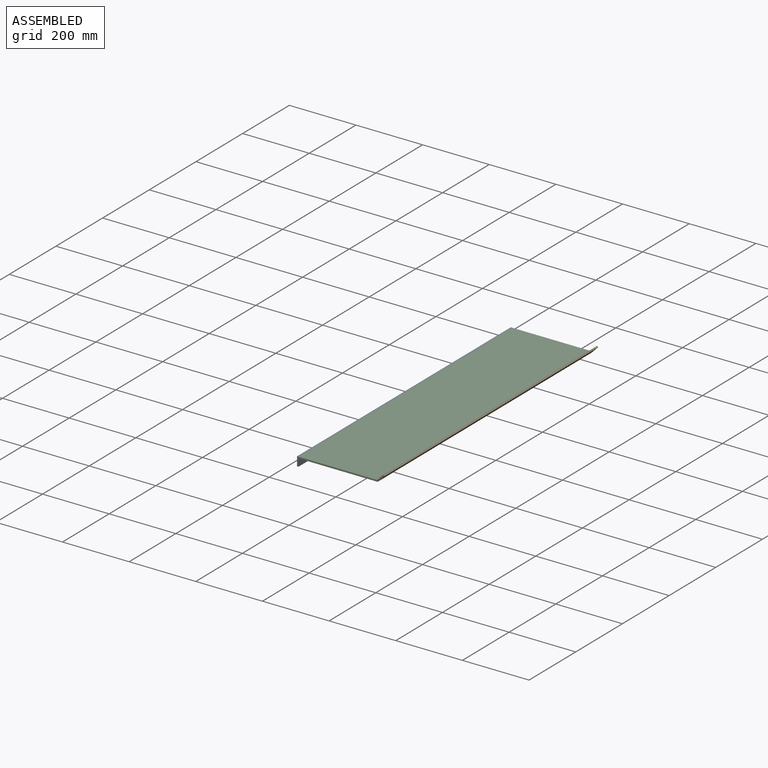
[diagram: assembled view]
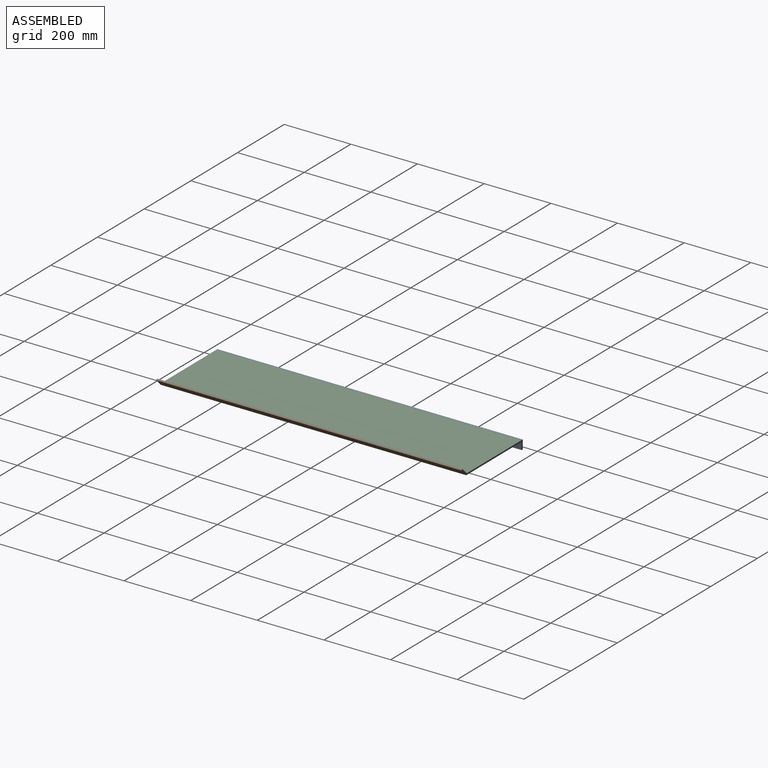
[diagram: assembled view, second angle]
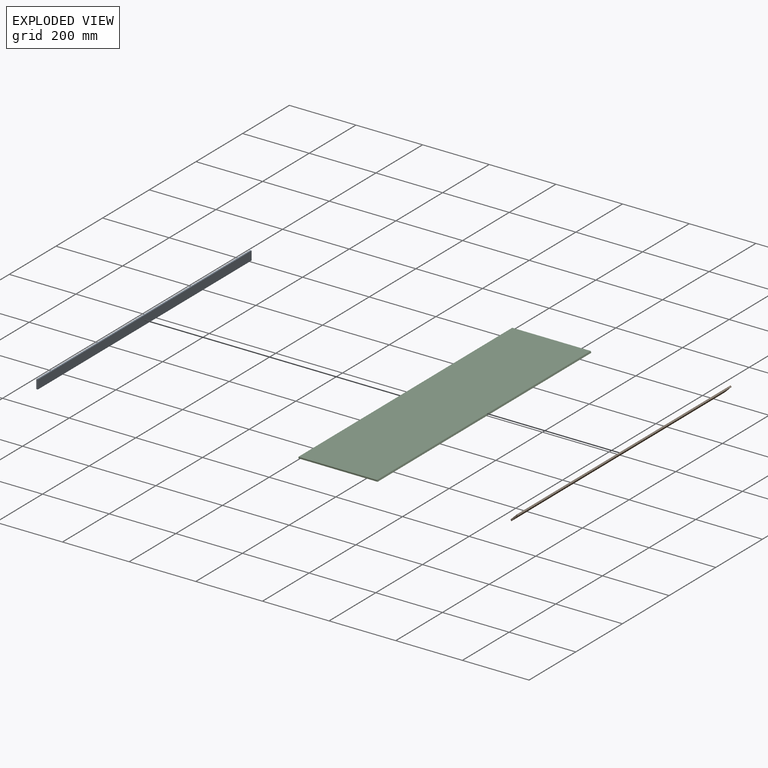
[diagram: exploded view]
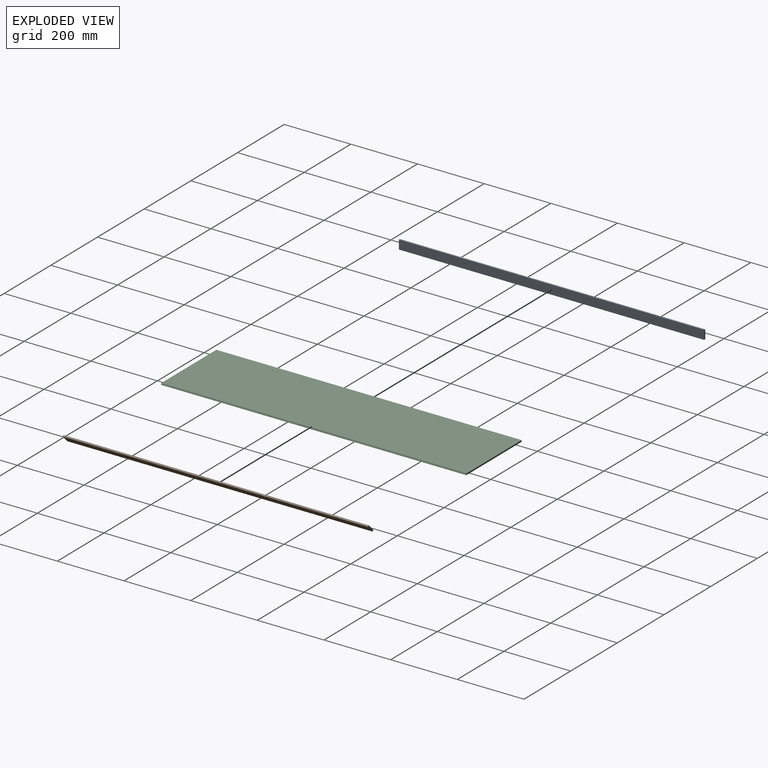
[diagram: exploded view, second angle]
ASSEMBLY  parts=3 mates=2
PART A: 6 faces, bbox 4.5x916x27 mm
  f0: plane 916x4.5mm, normal (0,0,1), area 4122mm2, adj f1,f3,f4,f5
  f1: plane 916x27mm, normal (-1,0,0), area 24732mm2, adj f0,f2,f4,f5
  f2: plane 916x4.5mm, normal (0,0,-1), area 4122mm2, adj f1,f3,f4,f5
  f3: plane 916x27mm, normal (1,0,0), area 24732mm2, adj f0,f2,f4,f5
  f4: plane 27x4.5mm, normal (0,-1,0), area 121.5mm2, adj f0,f1,f2,f3
  f5: plane 27x4.5mm, normal (0,1,0), area 121.5mm2, adj f0,f1,f2,f3
PART B: 6 faces, bbox 4.5x916x28.9 mm
  f0: plane 916x27mm, normal (-1,0,0), area 24732mm2, adj f2,f3,f4,f5
  f1: plane 916x28.86mm, normal (1,0,0), area 26439.4mm2, adj f2,f3,f4,f5
  f2: plane 916x4.5mm, normal (0,0,1), area 4122mm2, adj f0,f1,f3,f4
  f3: plane 28.86x4.5mm, normal (0,-1,0), area 125.7mm2, adj f0,f1,f2,f5
  f4: plane 28.86x4.5mm, normal (0,1,0), area 125.7mm2, adj f0,f1,f2,f5
  f5: plane 916x4.5mm, normal (-0.38,0,-0.92), area 4461.6mm2, adj f0,f1,f3,f4
PART C: 6 faces, bbox 237.4x916x4.5 mm
  f0: plane 916x235.5mm, normal (0,0,1), area 215718mm2, adj f1,f3,f4,f5
  f1: plane 916x4.5mm, normal (-1,0,0), area 4122mm2, adj f0,f2,f3,f4
  f2: plane 916x237.36mm, normal (0,0,-1), area 217425.4mm2, adj f1,f3,f4,f5
  f3: plane 237.36x4.5mm, normal (0,-1,0), area 1063.9mm2, adj f0,f1,f2,f5
  f4: plane 237.36x4.5mm, normal (0,1,0), area 1063.9mm2, adj f0,f1,f2,f5
  f5: plane 916x4.5mm, normal (0.92,0,0.38), area 4461.6mm2, adj f0,f2,f3,f4
PLACE A t=(-362.72,182.19,-86.54)mm
PLACE B rot(axis=(0,1,0),45deg) t=(-124.04,182.19,-87.86)mm
PLACE C t=(-358.22,182.19,-86.54)mm
MATE fastened B.f5 <-> C.f5  axis (-0.92,0,-0.38) through (-121.79,-275.81,-88.79)mm
MATE fastened C.f1 <-> A.f3  axis (-1,0,0) through (-358.22,-733.81,-86.54)mm
